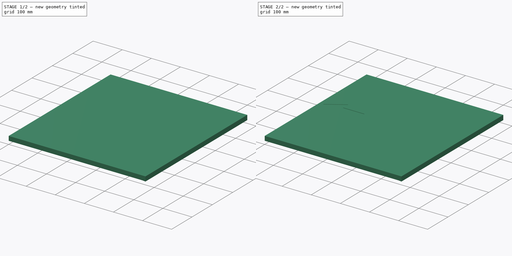
[diagram: build sequence overview — one tinted view per stage of 2, left to right]
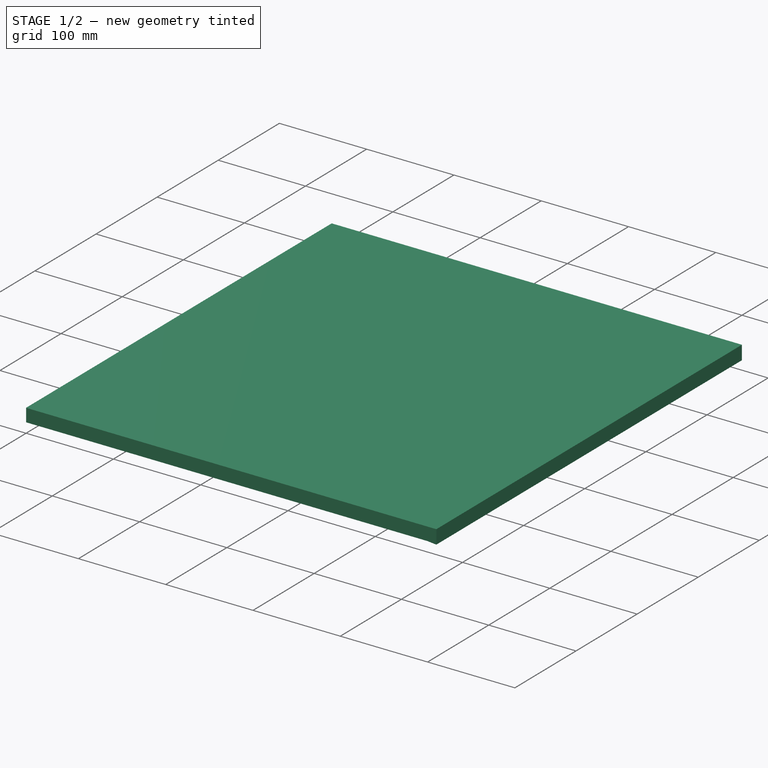
[diagram: stage 1 of 2 — iso view after this stage's code; geometry added in this stage tinted green]
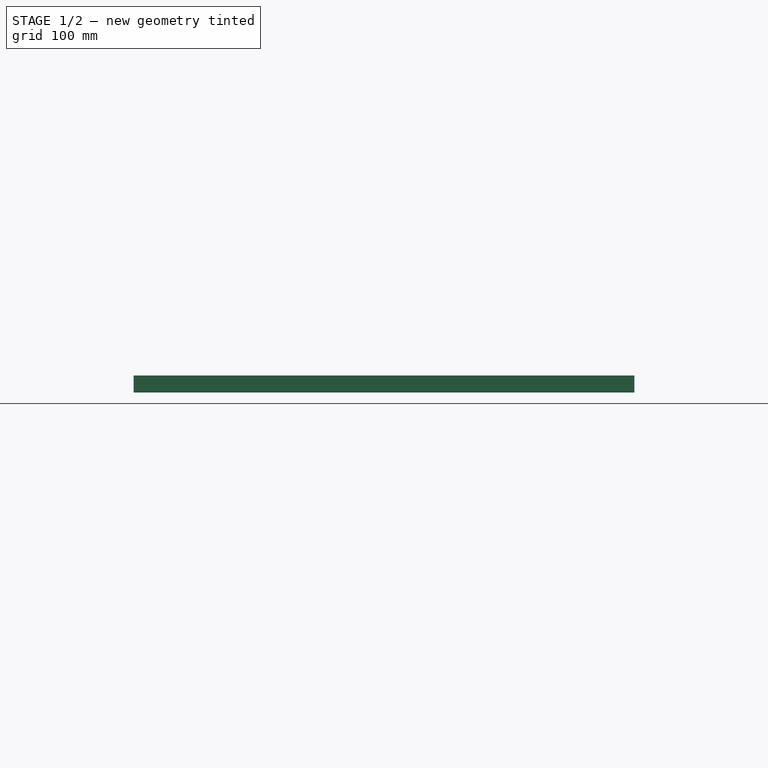
[diagram: stage 1 of 2 — front view after this stage's code; geometry added in this stage tinted green]
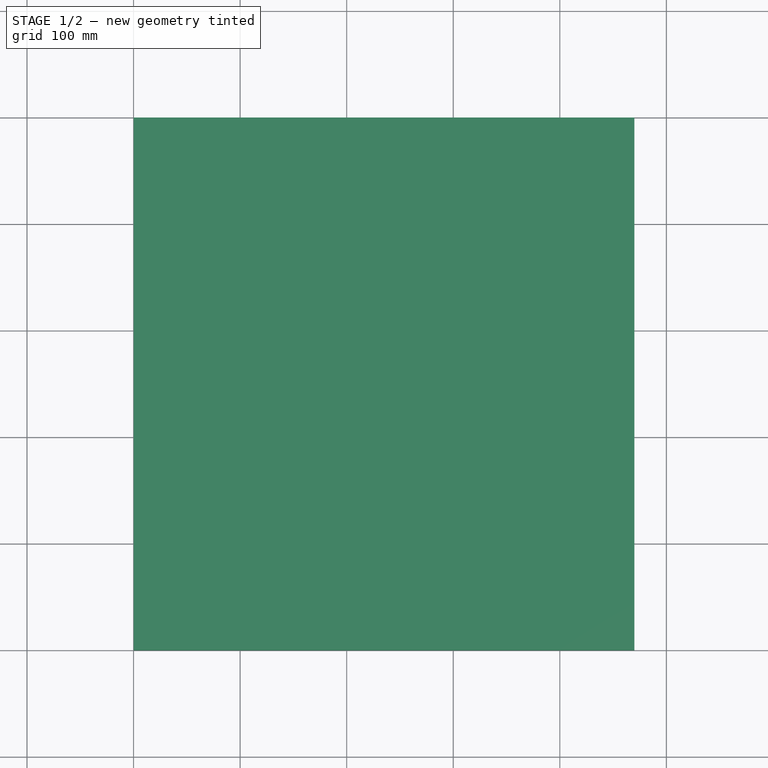
[diagram: stage 1 of 2 — top view after this stage's code; geometry added in this stage tinted green]
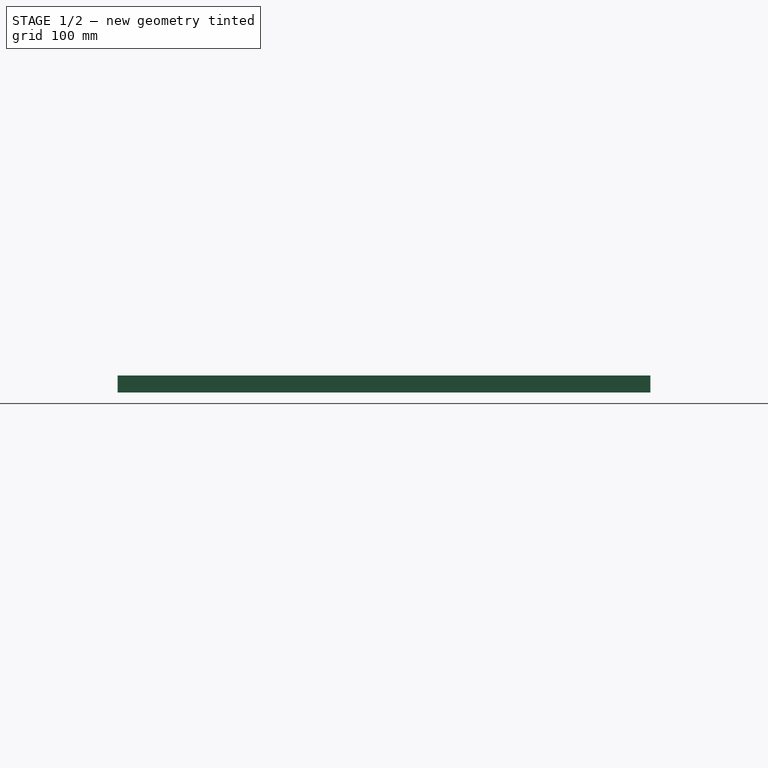
[diagram: stage 1 of 2 — right view after this stage's code; geometry added in this stage tinted green]
FCSTD DOCUMENT  (FreeCAD 0.19R24276 (Git))
Label: 8000_PRT_Floor
License: All rights reserved
LicenseURL: http://en.wikipedia.org/wiki/All_rights_reserved
objects: Sketcher::SketchObject×3, PartDesign::Pocket×2, PartDesign::Pad×1, Spreadsheet::Sheet×1, PartDesign::Body×1, App::Part×1
note: 10 computed .brp shape members not serialized (recipe doc carries the construction recipe); baked Part::Feature solids carry a one-line shape summary decoded from their .brp

FEATURE [Sketcher::SketchObject] Sketch
  FullyConstrained = false
  MapMode = 5
  Support = -> [XY_Plane001]
  expr: Constraints[5] = Spreadsheet.Depth
  expr: Constraints[6] = Spreadsheet.Width
  sketch-geometry (7):
    g0: LineSegment StartX=0 StartY=413.879 StartZ=0 EndX=0 EndY=500 EndZ=0
    g1: LineSegment StartX=0 StartY=500 StartZ=0 EndX=470 EndY=500 EndZ=0
    g2: LineSegment StartX=470 StartY=500 StartZ=0 EndX=470 EndY=0 EndZ=0
    g3: LineSegment StartX=470 StartY=0 StartZ=0 EndX=0 EndY=0 EndZ=0
    g4: LineSegment StartX=0 StartY=0 StartZ=0 EndX=0 EndY=413.879 EndZ=0
    g5: LineSegment StartX=0 StartY=0 StartZ=0 EndX=235 EndY=250 EndZ=0
    g6: LineSegment StartX=235 StartY=250 StartZ=0 EndX=470 EndY=500 EndZ=0
  constraints (18):
    c: Coincident(g1,g0)
    c: Horizontal(g1)
    c: Horizontal(g3)
    c: Coincident(g4,g3)
    c: Coincident(g3,g2)
    c: Distance(g1) = 470
    c: DistanceY(g2,g2) = 500
    c: Coincident(g1,g2)
    c: Coincident(g5,g3)
    c: Coincident(g6,g1)
    c: Equal(g6,g5)
    c: Coincident(g5,g6)
    c: Parallel(g5,g6)
    c: Vertical(g0)
    c: Vertical(g2)
    c: Coincident(g4,g0)
    c: Vertical(g4)
    c: Coincident(g3,g-1)
FEATURE [PartDesign::Pad] Pad
  AllowMultiFace = false
  Direction = (1,1,1)
  Length = 16
  Length2 = 100
  Profile = -> Sketch
  Reversed = true
  Type = 0
  expr: Length = Spreadsheet.T
FEATURE [Spreadsheet::Sheet] Spreadsheet
  cells = B2=BODY FLOOR; B3=Z=; C3(T)=16; D3=.T; E3=Thichness; B4=Y=; C4(Width)=500; D4=.W; E4=Width; B5=X=; C5(Depth)=470; D5=.D; E5=Depth
FEATURE [Sketcher::SketchObject] Sketch002
  ExternalGeometry = -> [Pad]
  FullyConstrained = false
  MapMode = 5
  Placement = pos=(0,0,-16) rot=(1,0,0;3.14159rad)
  Support = -> [Pad]
  sketch-geometry (3):
    g0: LineSegment StartX=0 StartY=0 StartZ=0 EndX=0 EndY=-71.9732 EndZ=0
    g1: LineSegment StartX=0 StartY=-71.9732 StartZ=0 EndX=470 EndY=0 EndZ=0
    g2: LineSegment StartX=470 StartY=0 StartZ=0 EndX=0 EndY=0 EndZ=0
  constraints (6):
    c: Coincident(g0,g-3)
    c: PointOnObject(g0,g-2)
    c: Coincident(g1,g0)
    c: Coincident(g1,g-3)
    c: Coincident(g2,g1)
    c: Coincident(g2,g0)
FEATURE [PartDesign::Pocket] Pocket
  AllowMultiFace = false
  BaseFeature = -> Pad
  Length = 1
  Length2 = 100
  Profile = -> Sketch002
  Type = 0
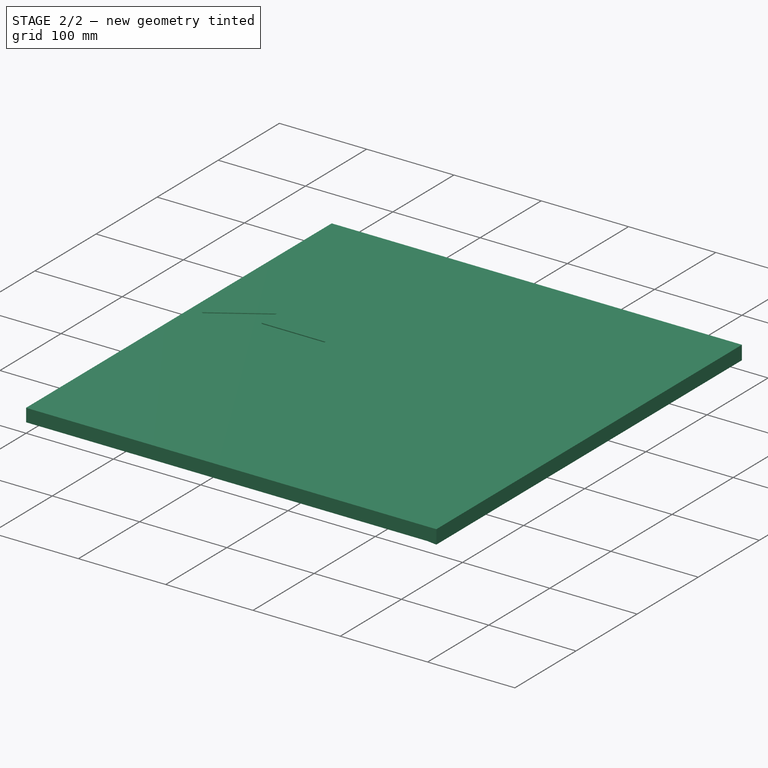
[diagram: stage 2 of 2 — iso view after this stage's code; geometry added in this stage tinted green]
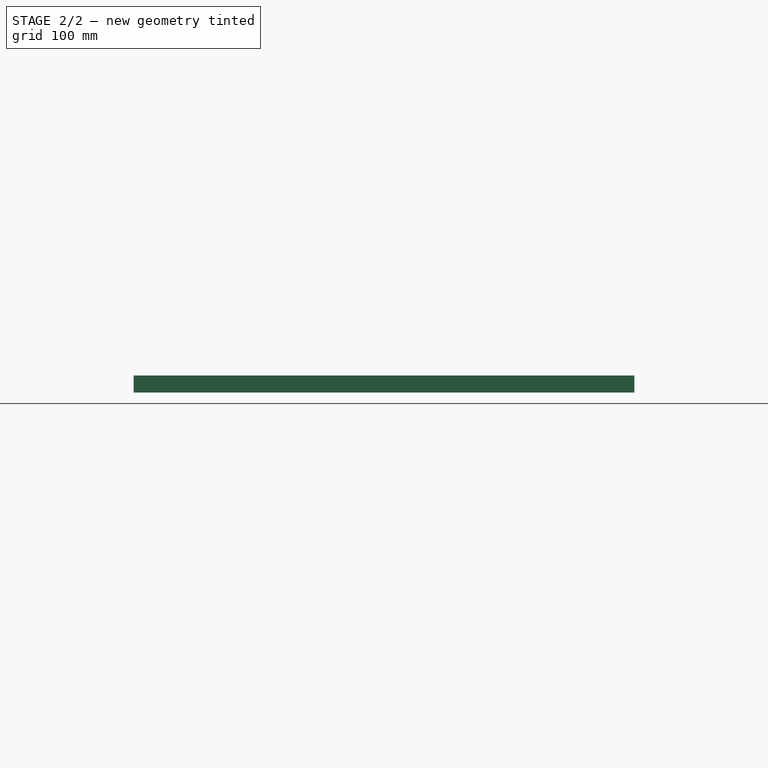
[diagram: stage 2 of 2 — front view after this stage's code; geometry added in this stage tinted green]
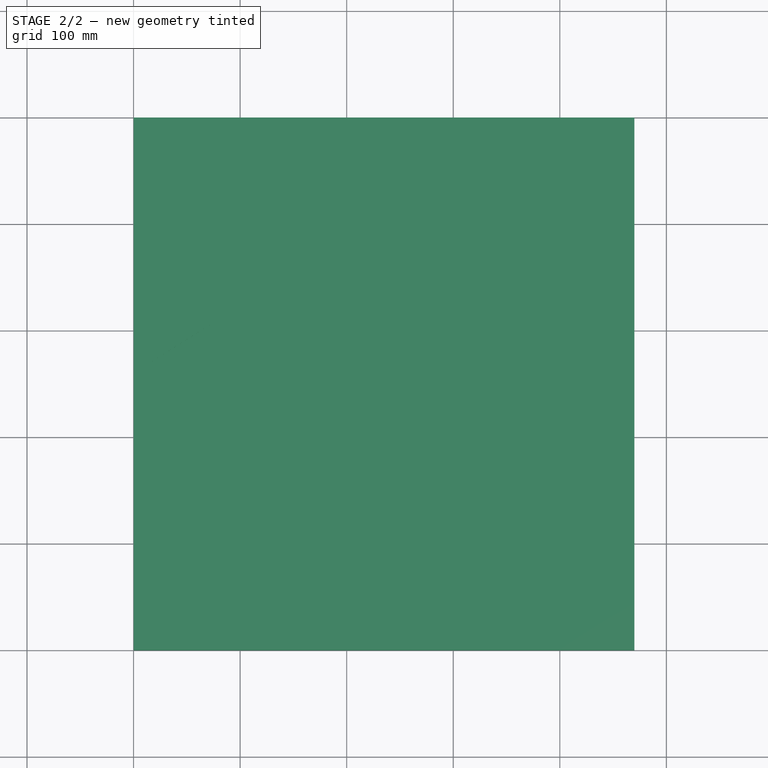
[diagram: stage 2 of 2 — top view after this stage's code; geometry added in this stage tinted green]
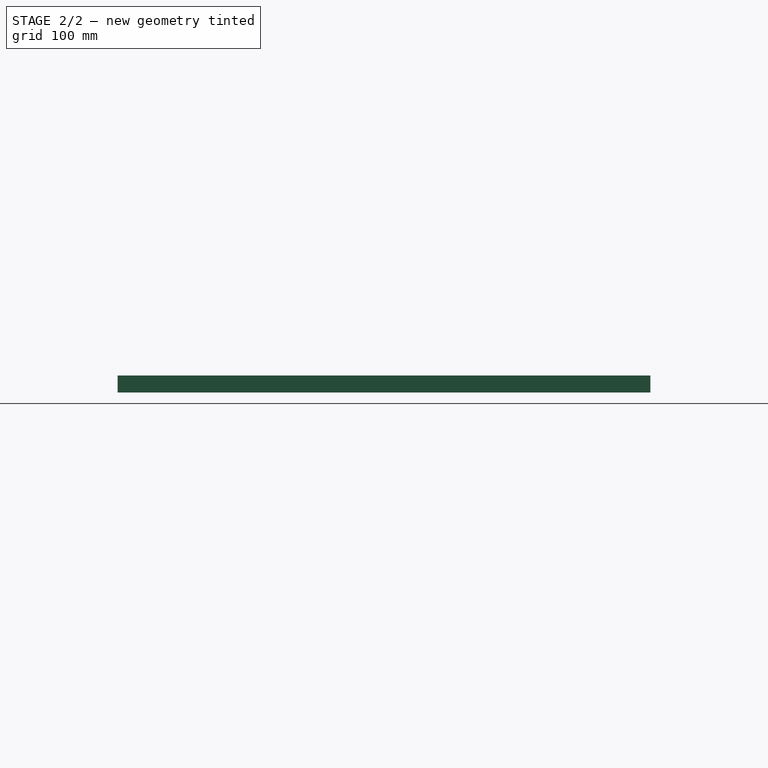
[diagram: stage 2 of 2 — right view after this stage's code; geometry added in this stage tinted green]
FEATURE [Sketcher::SketchObject] Sketch003
  FullyConstrained = false
  MapMode = 5
  Support = -> [Pocket]
  sketch-geometry (7):
    g0: LineSegment StartX=72.9352 StartY=306.383 StartZ=0 EndX=13.3739 EndY=268.44 EndZ=0
    g1: LineSegment StartX=13.3739 StartY=268.44 StartZ=0 EndX=72.9352 EndY=230.498 EndZ=0
    g2: LineSegment StartX=72.9352 StartY=230.498 StartZ=0 EndX=72.9352 EndY=255.614 EndZ=0
    g3: LineSegment StartX=72.9352 StartY=306.383 StartZ=0 EndX=72.9352 EndY=281.267 EndZ=0
    g4: LineSegment StartX=72.9352 StartY=281.267 StartZ=0 EndX=146.197 EndY=281.267 EndZ=0
    g5: LineSegment StartX=146.197 StartY=281.267 StartZ=0 EndX=146.197 EndY=255.614 EndZ=0
    g6: LineSegment StartX=146.197 StartY=255.614 StartZ=0 EndX=72.9352 EndY=255.614 EndZ=0
  constraints (15):
    c: Coincident(g1,g0)
    c: Coincident(g2,g1)
    c: Vertical(g2)
    c: Coincident(g3,g0)
    c: Vertical(g3)
    c: Coincident(g4,g3)
    c: Horizontal(g4)
    c: Coincident(g5,g4)
    c: Coincident(g6,g5)
    c: Coincident(g6,g2)
    c: Equal(g2,g3)
    c: Horizontal(g6)
    c: Vertical(g5)
    c: Equal(g1,g0)
    c: Vertical(g2,g3)
FEATURE [PartDesign::Pocket] Pocket001
  BaseFeature = -> Pocket
  Length = 1
  Length2 = 100
  Profile = -> Sketch003
  Type = 0
FEATURE [PartDesign::Body] PadBody
  Group = -> [Sketch,Pad,Sketch002,Pocket,Sketch003,Pocket001]
  Origin = -> Origin001
  Tip = -> Pocket001
FEATURE [App::Part] Part
  Group = -> [PadBody]
  License = CC BY 3.0
  LicenseURL = http://creativecommons.org/licenses/by/3.0/
  Origin = -> Origin
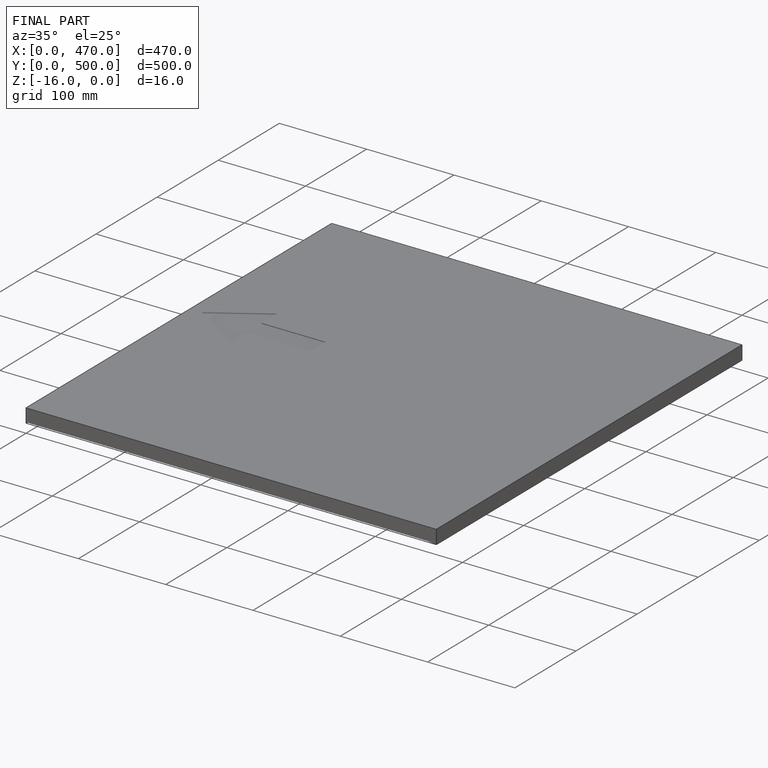
[diagram: finished part — iso view with bounding-box wireframe]
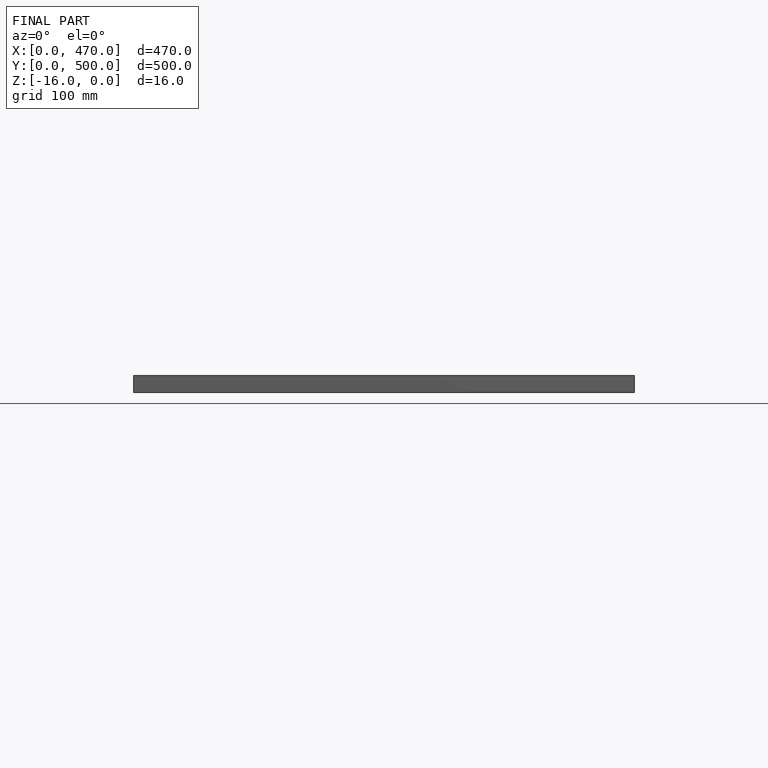
[diagram: finished part — front view with bounding-box wireframe]
